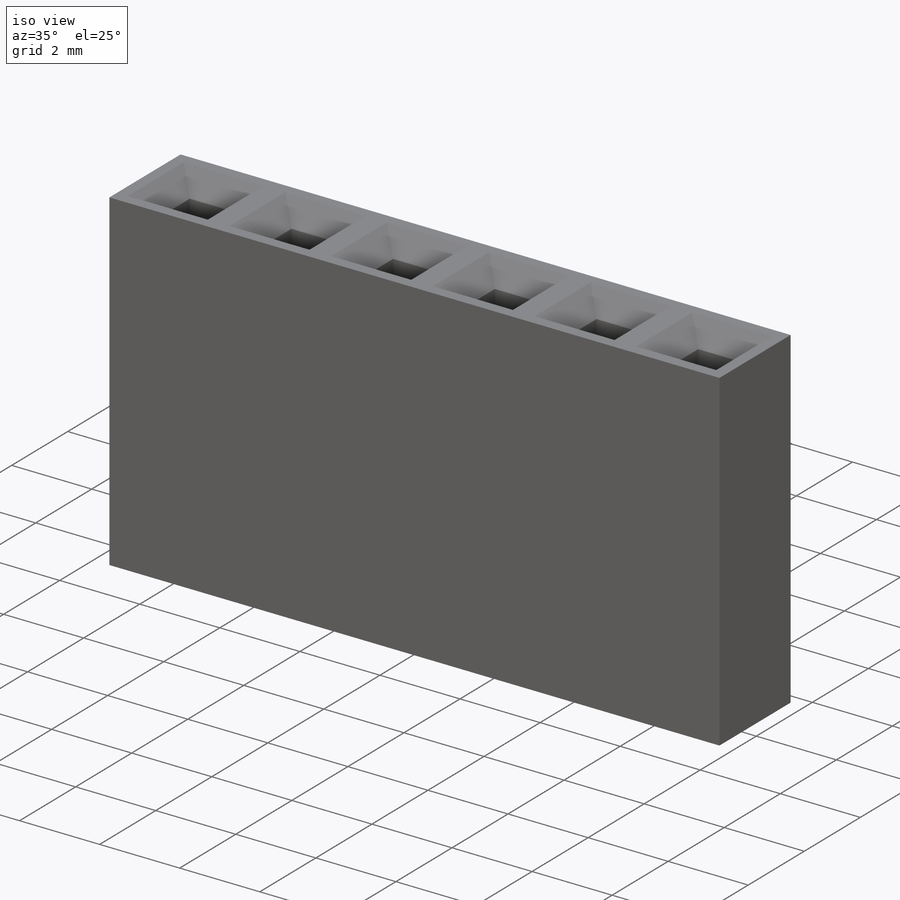
[diagram: iso view]
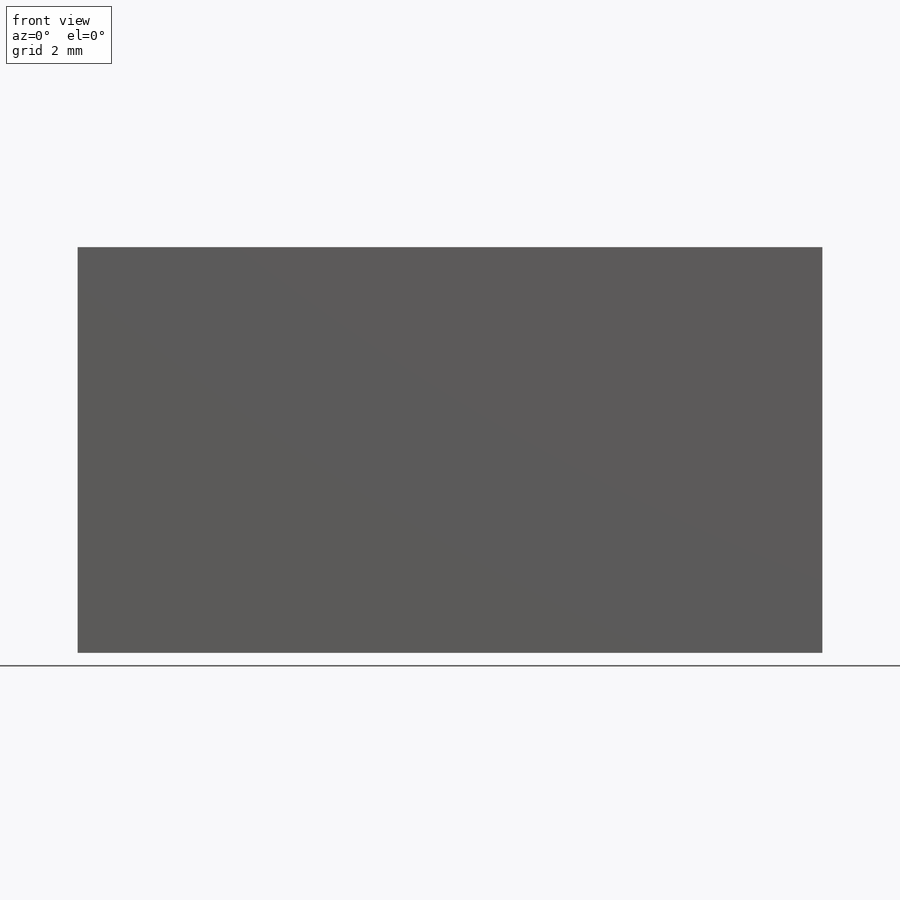
[diagram: front view]
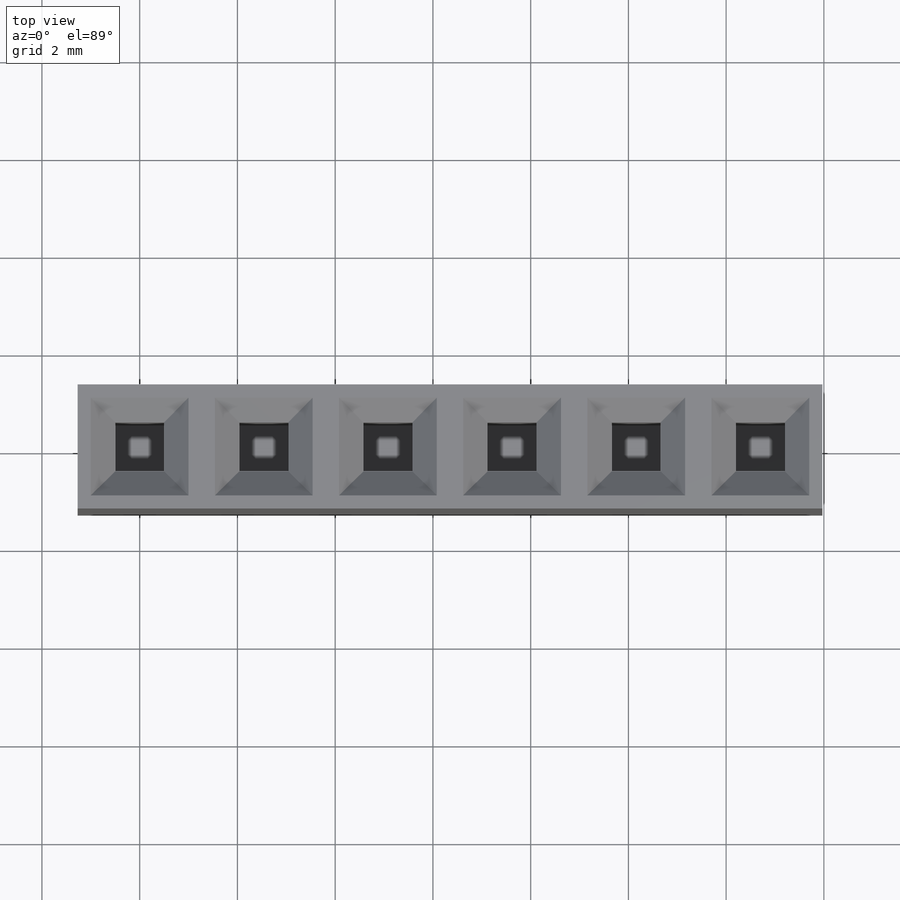
[diagram: top view]
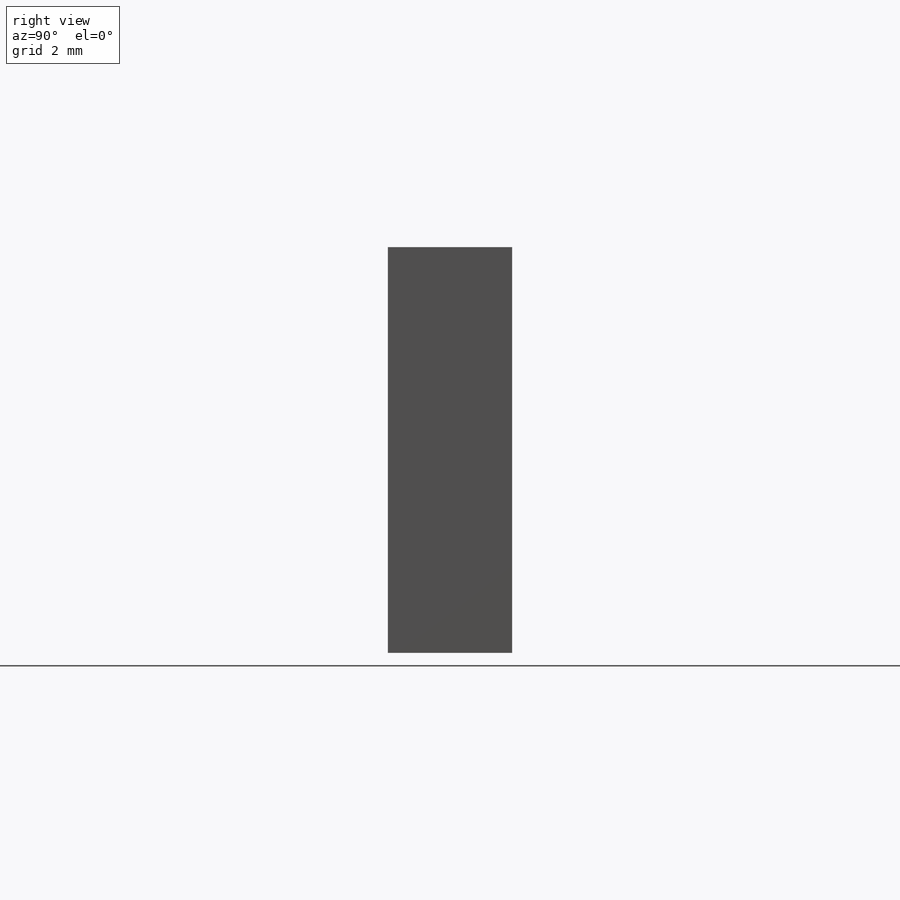
[diagram: right view]
SOLIDWORKS PART (.sldprt)
format: sldprt  version: not decoded by parser v0  size: 158,720 bytes
history: native  units: mm
features: sketch x2, material x1, extrude x1, cut_extrude x1, chamfer x1, pattern_linear x1 (+11 scaffold rows collapsed)
feature tree (18):
  scaffold x11  (default folders/planes/origin — collapsed)
  material  "Material <not specified>"
  sketch  "Sketch1"  dims[D1=2.54mm D2=2.54mm D3=~3.098744mm]
  extrude  "Boss-Extrude1"  Depth=8.3mm
  sketch  "Sketch2"  dims[D1=1.0mm D2=1.0mm]
  cut_extrude  "Cut-Extrude1"  Depth=4mm
  chamfer  "Chamfer1"  Distance=0.5mm Angle=45deg
  pattern_linear  "LPattern1"  Count1=6 Count2=1 Spacing1=2.54mm Spacing2=50mm
decode coverage: 6 of 6 modeling features carry decoded parameters
note: ~ marks probable driven/reference dimensions
note: suppression state not decoded; provenance and decode notes live in map.json
